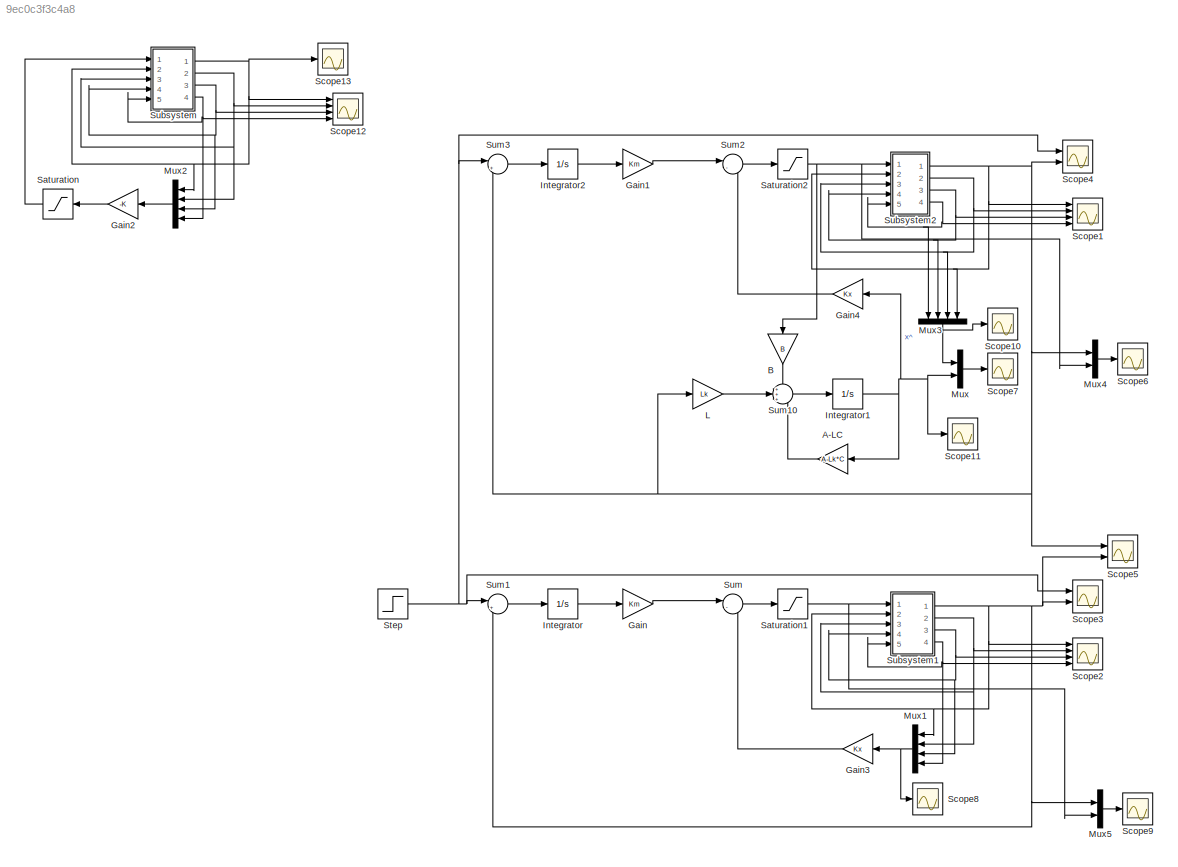
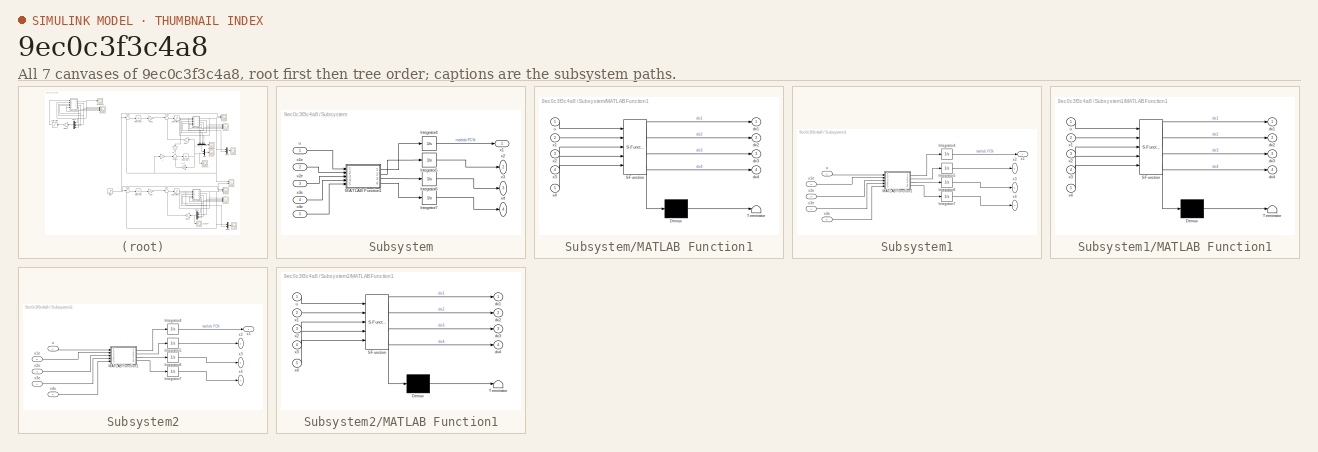
[diagram: thumbnail index - all 7 canvases of the model, root first then tree order]
MODEL slx_9ec0c3f3c4a8
KIND model
CONFIG AbsTol = auto
CONFIG FixedStep = auto
CONFIG MaxStep = 0.01
CONFIG MinStep = auto
CONFIG RelTol = 1e-3
CONFIG SampleTimeConstraint = Unconstrained
CONFIG Solver = VariableStepAuto
CONFIG SolverMode = Auto
CONFIG SolverName = VariableStepAuto
CONFIG StartTime = 0.0
CONFIG StopTime = 40
BLOCK [Gain] A-LC
  Gain = A-Lk*C
  Multiplication = Matrix(K*u)
  OutDataTypeStr = Inherit: Inherit via internal rule
  ParamDataTypeStr = Inherit: Inherit via internal rule
  SaturateOnIntegerOverflow = off
BLOCK [Gain] B
  Gain = B
  Multiplication = Matrix(K*u)
  OutDataTypeStr = Inherit: Inherit via internal rule
  ParamDataTypeStr = Inherit: Inherit via internal rule
  SaturateOnIntegerOverflow = off
BLOCK [Gain] Gain
  Gain = Km
  OutDataTypeStr = Inherit: Inherit via internal rule
  ParamDataTypeStr = Inherit: Inherit via internal rule
  SaturateOnIntegerOverflow = off
BLOCK [Gain] Gain1
  Gain = Km
  OutDataTypeStr = Inherit: Inherit via internal rule
  ParamDataTypeStr = Inherit: Inherit via internal rule
  SaturateOnIntegerOverflow = off
BLOCK [Gain] Gain2
  Gain = -K
  Multiplication = Matrix(K*u)
  OutDataTypeStr = Inherit: Inherit via internal rule
  ParamDataTypeStr = Inherit: Inherit via internal rule
  SaturateOnIntegerOverflow = off
BLOCK [Gain] Gain3
  Gain = Kx
  Multiplication = Matrix(K*u)
  OutDataTypeStr = Inherit: Inherit via internal rule
  ParamDataTypeStr = Inherit: Inherit via internal rule
  SaturateOnIntegerOverflow = off
BLOCK [Gain] Gain4
  Gain = Kx
  Multiplication = Matrix(K*u)
  OutDataTypeStr = Inherit: Inherit via internal rule
  ParamDataTypeStr = Inherit: Inherit via internal rule
  SaturateOnIntegerOverflow = off
BLOCK [Integrator] Integrator
  Ports = [1, 1]
BLOCK [Integrator] Integrator1
  InitialCondition = x0obs
  Ports = [1, 1]
  ZeroCross = off
BLOCK [Integrator] Integrator2
  Ports = [1, 1]
BLOCK [Gain] L
  Gain = Lk
  Multiplication = Matrix(K*u)
  OutDataTypeStr = Inherit: Inherit via internal rule
  ParamDataTypeStr = Inherit: Inherit via internal rule
  SaturateOnIntegerOverflow = off
BLOCK [Mux] Mux
  DisplayOption = bar
  Inputs = 2
  Ports = [2, 1]
BLOCK [Mux] Mux1
  DisplayOption = bar
  Ports = [4, 1]
BLOCK [Mux] Mux2
  DisplayOption = bar
  Ports = [4, 1]
BLOCK [Mux] Mux3
  DisplayOption = bar
  Ports = [4, 1]
BLOCK [Mux] Mux4
  DisplayOption = bar
  Inputs = 2
  Ports = [2, 1]
BLOCK [Mux] Mux5
  DisplayOption = bar
  Inputs = 2
  Ports = [2, 1]
BLOCK [Saturate] Saturation
  InputPortMap = u0
  LowerLimit = -50
  Ports = [1, 1]
  UpperLimit = 50
BLOCK [Saturate] Saturation1
  InputPortMap = u0
  LowerLimit = -50
  Ports = [1, 1]
  UpperLimit = 50
BLOCK [Saturate] Saturation2
  InputPortMap = u0
  LowerLimit = -50
  Ports = [1, 1]
  UpperLimit = 50
BLOCK [Scope] Scope1
  NumInputPorts = 4
  Ports = [4]
  ScopeSpecificationString = Simulink.scopes.TimeScopeBlockCfg('CurrentConfiguration', extmgr.ConfigurationSet(extmgr.Configuration('Core','General UI',true),extmgr.Configuration('Core','Source UI',true),extmgr.Configuration('Sources','WiredSimulink',true,'DataLoggingVariableName','ScopeData3'),extmgr.Configuration('Visuals','Time Domain',true,'SerializedDisplays',{struct('MinYLimReal','-79361.46732','MaxYLimReal','8983.56098...<+1505ch>
BLOCK [Scope] Scope10
  Ports = [1]
  ScopeSpecificationString = Simulink.scopes.TimeScopeBlockCfg('CurrentConfiguration', extmgr.ConfigurationSet(extmgr.Configuration('Core','General UI',true),extmgr.Configuration('Core','Source UI',true),extmgr.Configuration('Sources','WiredSimulink',true,'DataLoggingVariableName','x1','DataLoggingSaveFormat','Array','DataLoggingDecimation','1','DataLoggingDecimateData',true,'DataLogging',true),extmgr.Configuration('Visuals',...<+1579ch>
BLOCK [Scope] Scope11
  Ports = [1]
  ScopeSpecificationString = Simulink.scopes.TimeScopeBlockCfg('CurrentConfiguration', extmgr.ConfigurationSet(extmgr.Configuration('Core','General UI',true),extmgr.Configuration('Core','Source UI',true),extmgr.Configuration('Sources','WiredSimulink',true,'DataLoggingVariableName','x2','DataLoggingSaveFormat','Array','DataLoggingDecimation','1','DataLoggingDecimateData',true,'DataLogging',true),extmgr.Configuration('Visuals',...<+1538ch>
BLOCK [Scope] Scope12
  NumInputPorts = 4
  Ports = [4]
  ScopeSpecificationString = Simulink.scopes.TimeScopeBlockCfg('CurrentConfiguration', extmgr.ConfigurationSet(extmgr.Configuration('Core','General UI',true),extmgr.Configuration('Core','Source UI',true),extmgr.Configuration('Sources','WiredSimulink',true,'DataLoggingVariableName','ScopeData1'),extmgr.Configuration('Visuals','Time Domain',true,'SerializedDisplays',{struct('MinYLimReal','-1.09492','MaxYLimReal','1.20932','YLab...<+1473ch>
BLOCK [Scope] Scope13
  Ports = [1]
  ScopeSpecificationString = Simulink.scopes.TimeScopeBlockCfg('CurrentConfiguration', extmgr.ConfigurationSet(extmgr.Configuration('Core','General UI',true),extmgr.Configuration('Core','Source UI',true),extmgr.Configuration('Sources','WiredSimulink',true,'DataLoggingVariableName','ScopeData2'),extmgr.Configuration('Visuals','Time Domain',true,'SerializedDisplays',{struct('MinYLimReal','-0.02411','MaxYLimReal','0.21119','YLab...<+1431ch>
BLOCK [Scope] Scope2
  NumInputPorts = 4
  Ports = [4]
  ScopeSpecificationString = Simulink.scopes.TimeScopeBlockCfg('CurrentConfiguration', extmgr.ConfigurationSet(extmgr.Configuration('Core','General UI',true),extmgr.Configuration('Core','Source UI',true),extmgr.Configuration('Sources','WiredSimulink',true,'DataLoggingVariableName','ScopeData1'),extmgr.Configuration('Visuals','Time Domain',true,'SerializedDisplays',{struct('MinYLimReal','-1.56031','MaxYLimReal','1.69263','YLab...<+1477ch>
BLOCK [Scope] Scope3
  NumInputPorts = 2
  Ports = [2]
  ScopeSpecificationString = Simulink.scopes.TimeScopeBlockCfg('CurrentConfiguration', extmgr.ConfigurationSet(extmgr.Configuration('Core','General UI',true),extmgr.Configuration('Core','Source UI',true),extmgr.Configuration('Sources','WiredSimulink',true,'DataLoggingVariableName','ScopeData2'),extmgr.Configuration('Visuals','Time Domain',true,'SerializedDisplays',{struct('MinYLimReal','-0.77552','MaxYLimReal','1.31383','YLab...<+1439ch>
BLOCK [Scope] Scope4
  NumInputPorts = 2
  Ports = [2]
  ScopeSpecificationString = Simulink.scopes.TimeScopeBlockCfg('CurrentConfiguration', extmgr.ConfigurationSet(extmgr.Configuration('Core','General UI',true),extmgr.Configuration('Core','Source UI',true),extmgr.Configuration('Sources','WiredSimulink',true,'DataLoggingVariableName','ScopeData4'),extmgr.Configuration('Visuals','Time Domain',true,'SerializedDisplays',{struct('MinYLimReal','-0.98257','MaxYLimReal','1.49995','YLab...<+1439ch>
BLOCK [Scope] Scope5
  NumInputPorts = 2
  Ports = [2]
  ScopeSpecificationString = Simulink.scopes.TimeScopeBlockCfg('CurrentConfiguration', extmgr.ConfigurationSet(extmgr.Configuration('Core','General UI',true),extmgr.Configuration('Core','Source UI',true),extmgr.Configuration('Sources','WiredSimulink',true,'DataLoggingVariableName','ScopeData1'),extmgr.Configuration('Visuals','Time Domain',true,'SerializedDisplays',{struct('MinYLimReal','-1.00000','MaxYLimReal','1.00000','YLab...<+2114ch>
BLOCK [Scope] Scope6
  Ports = [1]
  ScopeSpecificationString = Simulink.scopes.TimeScopeBlockCfg('CurrentConfiguration', extmgr.ConfigurationSet(extmgr.Configuration('Core','General UI',true),extmgr.Configuration('Core','Source UI',true),extmgr.Configuration('Sources','WiredSimulink',true,'DataLoggingVariableName','y1','DataLoggingSaveFormat','Array','DataLoggingDecimation','1','DataLoggingDecimateData',true,'DataLogging',true),extmgr.Configuration('Visuals',...<+1552ch>
BLOCK [Scope] Scope7
  Ports = [1]
  ScopeSpecificationString = Simulink.scopes.TimeScopeBlockCfg('CurrentConfiguration', extmgr.ConfigurationSet(extmgr.Configuration('Core','General UI',true),extmgr.Configuration('Core','Source UI',true),extmgr.Configuration('Sources','WiredSimulink',true,'DataLoggingVariableName','ScopeData8'),extmgr.Configuration('Visuals','Time Domain',true,'SerializedDisplays',{struct('MinYLimReal','-1.60455','MaxYLimReal','2.44481','YLab...<+1549ch>
BLOCK [Scope] Scope8
  Ports = [1]
  ScopeSpecificationString = Simulink.scopes.TimeScopeBlockCfg('CurrentConfiguration', extmgr.ConfigurationSet(extmgr.Configuration('Core','General UI',true),extmgr.Configuration('Core','Source UI',true),extmgr.Configuration('Sources','WiredSimulink',true,'DataLoggingVariableName','x','DataLoggingSaveFormat','Array','DataLoggingDecimation','1','DataLoggingDecimateData',true,'DataLogging',true),extmgr.Configuration('Visuals','...<+1572ch>
BLOCK [Scope] Scope9
  Ports = [1]
  ScopeSpecificationString = Simulink.scopes.TimeScopeBlockCfg('CurrentConfiguration', extmgr.ConfigurationSet(extmgr.Configuration('Core','General UI',true),extmgr.Configuration('Core','Source UI',true),extmgr.Configuration('Sources','WiredSimulink',true,'DataLoggingVariableName','y','DataLoggingSaveFormat','Array','DataLoggingDecimation','1','DataLoggingDecimateData',true,'DataLogging',true),extmgr.Configuration('Visuals','...<+1551ch>
BLOCK [Step] Step
  After = pi/180*0
  SampleTime = 0
  Time = 20
BLOCK [SubSystem] Subsystem
  Ports = [5, 4]
  RequestExecContextInheritance = off
  Variant = off
BLOCK [Integrator] Subsystem/Integrator4
  Ports = [1, 1]
  ZeroCross = off
BLOCK [Integrator] Subsystem/Integrator5
  Ports = [1, 1]
  ZeroCross = off
BLOCK [Integrator] Subsystem/Integrator6
  InitialCondition = 0.1
  Ports = [1, 1]
  ZeroCross = off
BLOCK [Integrator] Subsystem/Integrator7
  Ports = [1, 1]
  ZeroCross = off
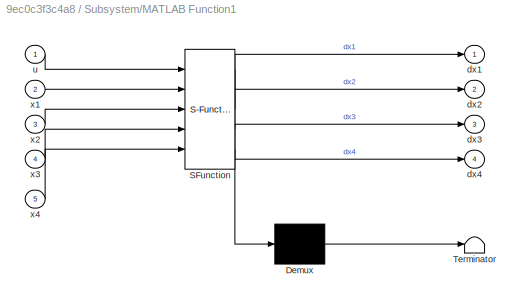
BLOCK [SubSystem] Subsystem/MATLAB Function1
  ErrorFcn = Stateflow.Translate.translate
  PermitHierarchicalResolution = ExplicitOnly
  Ports = [5, 4]
  RequestExecContextInheritance = off
  SFBlockType = MATLAB Function
  TreatAsAtomicUnit = on
  Variant = off
BLOCK [Demux] Subsystem/MATLAB Function1/ Demux 
  Outputs = 1
  Ports = [1, 1]
BLOCK [S-Function] Subsystem/MATLAB Function1/ SFunction 
  EnableBusSupport = on
  FunctionName = sf_sfun
  PortCounts = [5 5]
  Ports = [5, 5]
  SFunctionDeploymentMode = off
  Tag = Stateflow S-Function modelo_q3 1
BLOCK [Terminator] Subsystem/MATLAB Function1/ Terminator 
BLOCK [Outport] Subsystem/MATLAB Function1/dx1
  IconDisplay = Port number
BLOCK [Outport] Subsystem/MATLAB Function1/dx2
  IconDisplay = Port number
  Port = 2
BLOCK [Outport] Subsystem/MATLAB Function1/dx3
  IconDisplay = Port number
  Port = 3
BLOCK [Outport] Subsystem/MATLAB Function1/dx4
  IconDisplay = Port number
  Port = 4
BLOCK [Inport] Subsystem/MATLAB Function1/u
  IconDisplay = Port number
BLOCK [Inport] Subsystem/MATLAB Function1/x1
  IconDisplay = Port number
  Port = 2
BLOCK [Inport] Subsystem/MATLAB Function1/x2
  IconDisplay = Port number
  Port = 3
BLOCK [Inport] Subsystem/MATLAB Function1/x3
  IconDisplay = Port number
  Port = 4
BLOCK [Inport] Subsystem/MATLAB Function1/x4
  IconDisplay = Port number
  Port = 5
BLOCK [Inport] Subsystem/u
  IconDisplay = Port number
BLOCK [Outport] Subsystem/x1
  IconDisplay = Port number
BLOCK [Inport] Subsystem/x1e
  IconDisplay = Port number
  Port = 2
BLOCK [Outport] Subsystem/x2
  IconDisplay = Port number
  Port = 2
BLOCK [Inport] Subsystem/x2e
  IconDisplay = Port number
  Port = 3
BLOCK [Outport] Subsystem/x3
  IconDisplay = Port number
  Port = 3
BLOCK [Inport] Subsystem/x3e
  IconDisplay = Port number
  Port = 4
BLOCK [Outport] Subsystem/x4
  IconDisplay = Port number
  Port = 4
BLOCK [Inport] Subsystem/x4e
  IconDisplay = Port number
  Port = 5
BLOCK [SubSystem] Subsystem1
  Ports = [5, 4]
  RequestExecContextInheritance = off
  Variant = off
BLOCK [Integrator] Subsystem1/Integrator4
  InitialCondition = x0(1)
  Ports = [1, 1]
  ZeroCross = off
BLOCK [Integrator] Subsystem1/Integrator5
  InitialCondition = x0(2)
  Ports = [1, 1]
  ZeroCross = off
BLOCK [Integrator] Subsystem1/Integrator6
  InitialCondition = x0(3)
  Ports = [1, 1]
  ZeroCross = off
BLOCK [Integrator] Subsystem1/Integrator7
  InitialCondition = x0(4)
  Ports = [1, 1]
  ZeroCross = off
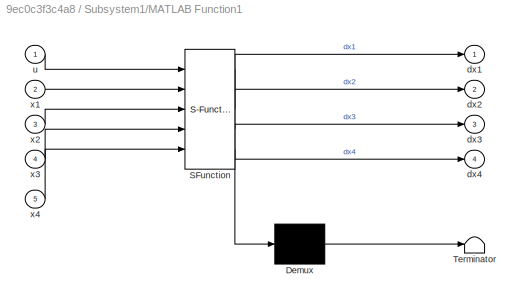
BLOCK [SubSystem] Subsystem1/MATLAB Function1
  ErrorFcn = Stateflow.Translate.translate
  PermitHierarchicalResolution = ExplicitOnly
  Ports = [5, 4]
  RequestExecContextInheritance = off
  SFBlockType = MATLAB Function
  TreatAsAtomicUnit = on
  Variant = off
BLOCK [Demux] Subsystem1/MATLAB Function1/ Demux 
  Outputs = 1
  Ports = [1, 1]
BLOCK [S-Function] Subsystem1/MATLAB Function1/ SFunction 
  EnableBusSupport = on
  FunctionName = sf_sfun
  PortCounts = [5 5]
  Ports = [5, 5]
  SFunctionDeploymentMode = off
  Tag = Stateflow S-Function modelo_q3 2
BLOCK [Terminator] Subsystem1/MATLAB Function1/ Terminator 
BLOCK [Outport] Subsystem1/MATLAB Function1/dx1
  IconDisplay = Port number
BLOCK [Outport] Subsystem1/MATLAB Function1/dx2
  IconDisplay = Port number
  Port = 2
BLOCK [Outport] Subsystem1/MATLAB Function1/dx3
  IconDisplay = Port number
  Port = 3
BLOCK [Outport] Subsystem1/MATLAB Function1/dx4
  IconDisplay = Port number
  Port = 4
BLOCK [Inport] Subsystem1/MATLAB Function1/u
  IconDisplay = Port number
BLOCK [Inport] Subsystem1/MATLAB Function1/x1
  IconDisplay = Port number
  Port = 2
BLOCK [Inport] Subsystem1/MATLAB Function1/x2
  IconDisplay = Port number
  Port = 3
BLOCK [Inport] Subsystem1/MATLAB Function1/x3
  IconDisplay = Port number
  Port = 4
BLOCK [Inport] Subsystem1/MATLAB Function1/x4
  IconDisplay = Port number
  Port = 5
BLOCK [Inport] Subsystem1/u
  IconDisplay = Port number
BLOCK [Outport] Subsystem1/x1
  IconDisplay = Port number
BLOCK [Inport] Subsystem1/x1e
  IconDisplay = Port number
  Port = 2
BLOCK [Outport] Subsystem1/x2
  IconDisplay = Port number
  Port = 2
BLOCK [Inport] Subsystem1/x2e
  IconDisplay = Port number
  Port = 3
BLOCK [Outport] Subsystem1/x3
  IconDisplay = Port number
  Port = 3
BLOCK [Inport] Subsystem1/x3e
  IconDisplay = Port number
  Port = 4
BLOCK [Outport] Subsystem1/x4
  IconDisplay = Port number
  Port = 4
BLOCK [Inport] Subsystem1/x4e
  IconDisplay = Port number
  Port = 5
BLOCK [SubSystem] Subsystem2
  Ports = [5, 4]
  RequestExecContextInheritance = off
  Variant = off
BLOCK [Integrator] Subsystem2/Integrator4
  InitialCondition = x0(1)
  Ports = [1, 1]
  ZeroCross = off
BLOCK [Integrator] Subsystem2/Integrator5
  InitialCondition = x0(2)
  Ports = [1, 1]
  ZeroCross = off
BLOCK [Integrator] Subsystem2/Integrator6
  InitialCondition = x0(3)
  Ports = [1, 1]
  ZeroCross = off
BLOCK [Integrator] Subsystem2/Integrator7
  InitialCondition = x0(4)
  Ports = [1, 1]
  ZeroCross = off
BLOCK [SubSystem] Subsystem2/MATLAB Function1
  ErrorFcn = Stateflow.Translate.translate
  PermitHierarchicalResolution = ExplicitOnly
  Ports = [5, 4]
  RequestExecContextInheritance = off
  SFBlockType = MATLAB Function
  TreatAsAtomicUnit = on
  Variant = off
BLOCK [Demux] Subsystem2/MATLAB Function1/ Demux 
  Outputs = 1
  Ports = [1, 1]
BLOCK [S-Function] Subsystem2/MATLAB Function1/ SFunction 
  EnableBusSupport = on
  FunctionName = sf_sfun
  PortCounts = [5 5]
  Ports = [5, 5]
  SFunctionDeploymentMode = off
  Tag = Stateflow S-Function modelo_q3 3
BLOCK [Terminator] Subsystem2/MATLAB Function1/ Terminator 
BLOCK [Outport] Subsystem2/MATLAB Function1/dx1
  IconDisplay = Port number
BLOCK [Outport] Subsystem2/MATLAB Function1/dx2
  IconDisplay = Port number
  Port = 2
BLOCK [Outport] Subsystem2/MATLAB Function1/dx3
  IconDisplay = Port number
  Port = 3
BLOCK [Outport] Subsystem2/MATLAB Function1/dx4
  IconDisplay = Port number
  Port = 4
BLOCK [Inport] Subsystem2/MATLAB Function1/u
  IconDisplay = Port number
BLOCK [Inport] Subsystem2/MATLAB Function1/x1
  IconDisplay = Port number
  Port = 2
BLOCK [Inport] Subsystem2/MATLAB Function1/x2
  IconDisplay = Port number
  Port = 3
BLOCK [Inport] Subsystem2/MATLAB Function1/x3
  IconDisplay = Port number
  Port = 4
BLOCK [Inport] Subsystem2/MATLAB Function1/x4
  IconDisplay = Port number
  Port = 5
BLOCK [Inport] Subsystem2/u
  IconDisplay = Port number
BLOCK [Outport] Subsystem2/x1
  IconDisplay = Port number
BLOCK [Inport] Subsystem2/x1e
  IconDisplay = Port number
  Port = 2
BLOCK [Outport] Subsystem2/x2
  IconDisplay = Port number
  Port = 2
BLOCK [Inport] Subsystem2/x2e
  IconDisplay = Port number
  Port = 3
BLOCK [Outport] Subsystem2/x3
  IconDisplay = Port number
  Port = 3
BLOCK [Inport] Subsystem2/x3e
  IconDisplay = Port number
  Port = 4
BLOCK [Outport] Subsystem2/x4
  IconDisplay = Port number
  Port = 4
BLOCK [Inport] Subsystem2/x4e
  IconDisplay = Port number
  Port = 5
BLOCK [Sum] Sum
  IconShape = round
  InputSameDT = off
  Inputs = |--
  OutDataTypeStr = Inherit: Inherit via internal rule
  Ports = [2, 1]
  SaturateOnIntegerOverflow = off
BLOCK [Sum] Sum1
  IconShape = round
  InputSameDT = off
  Inputs = |+-
  OutDataTypeStr = Inherit: Inherit via internal rule
  Ports = [2, 1]
  SaturateOnIntegerOverflow = off
BLOCK [Sum] Sum10
  IconShape = round
  InputSameDT = off
  Inputs = +++
  OutDataTypeStr = Inherit: Inherit via internal rule
  Ports = [3, 1]
  SaturateOnIntegerOverflow = off
BLOCK [Sum] Sum2
  IconShape = round
  InputSameDT = off
  Inputs = |--
  OutDataTypeStr = Inherit: Inherit via internal rule
  Ports = [2, 1]
  SaturateOnIntegerOverflow = off
BLOCK [Sum] Sum3
  IconShape = round
  InputSameDT = off
  Inputs = |+-
  OutDataTypeStr = Inherit: Inherit via internal rule
  Ports = [2, 1]
  SaturateOnIntegerOverflow = off
LINE A-LC:1 -> Sum10:3
LINE B:1 -> Sum10:1
LINE Gain1:1 -> Sum2:1
LINE Gain2:1 -> Saturation:1
LINE Gain3:1 -> Sum:2
LINE Gain4:1 -> Sum2:2
LINE Gain:1 -> Sum:1
NET Integrator1:1 -> A-LC:1, Gain4:1, Mux:2, Scope11:1
LINE Integrator2:1 -> Gain1:1
LINE Integrator:1 -> Gain:1
LINE L:1 -> Sum10:2
NET Mux1:1 -> Gain3:1, Scope8:1
LINE Mux2:1 -> Gain2:1
NET Mux3:1 -> Mux:1, Scope10:1
LINE Mux4:1 -> Scope6:1
LINE Mux5:1 -> Scope9:1
LINE Mux:1 -> Scope7:1
NET Saturation1:1 -> Mux5:2, Subsystem1:1
NET Saturation2:1 -> B:1, Mux4:2, Subsystem2:1
LINE Saturation:1 -> Subsystem:1
NET Step:1 -> Scope3:1, Scope4:1, Sum1:1, Sum3:1
LINE Subsystem/Integrator4:1 -> Subsystem/x1:1
LINE Subsystem/Integrator5:1 -> Subsystem/x2:1
LINE Subsystem/Integrator6:1 -> Subsystem/x3:1
LINE Subsystem/Integrator7:1 -> Subsystem/x4:1
LINE Subsystem/MATLAB Function1:1 -> Subsystem/Integrator4:1
LINE Subsystem/MATLAB Function1:2 -> Subsystem/Integrator5:1
LINE Subsystem/MATLAB Function1:3 -> Subsystem/Integrator6:1
LINE Subsystem/MATLAB Function1:4 -> Subsystem/Integrator7:1
LINE Subsystem/u:1 -> Subsystem/MATLAB Function1:1
LINE Subsystem/x1e:1 -> Subsystem/MATLAB Function1:2
LINE Subsystem/x2e:1 -> Subsystem/MATLAB Function1:3
LINE Subsystem/x3e:1 -> Subsystem/MATLAB Function1:4
LINE Subsystem/x4e:1 -> Subsystem/MATLAB Function1:5
LINE Subsystem1/Integrator4:1 -> Subsystem1/x1:1
LINE Subsystem1/Integrator5:1 -> Subsystem1/x2:1
LINE Subsystem1/Integrator6:1 -> Subsystem1/x3:1
LINE Subsystem1/Integrator7:1 -> Subsystem1/x4:1
LINE Subsystem1/MATLAB Function1:1 -> Subsystem1/Integrator4:1
LINE Subsystem1/MATLAB Function1:2 -> Subsystem1/Integrator5:1
LINE Subsystem1/MATLAB Function1:3 -> Subsystem1/Integrator6:1
LINE Subsystem1/MATLAB Function1:4 -> Subsystem1/Integrator7:1
LINE Subsystem1/u:1 -> Subsystem1/MATLAB Function1:1
LINE Subsystem1/x1e:1 -> Subsystem1/MATLAB Function1:2
LINE Subsystem1/x2e:1 -> Subsystem1/MATLAB Function1:3
LINE Subsystem1/x3e:1 -> Subsystem1/MATLAB Function1:4
LINE Subsystem1/x4e:1 -> Subsystem1/MATLAB Function1:5
NET Subsystem1:1 -> Mux1:1, Mux5:1, Scope2:1, Scope3:2, Scope5:2, Subsystem1:2, Sum1:2
NET Subsystem1:2 -> Mux1:2, Scope2:2, Subsystem1:3
NET Subsystem1:3 -> Mux1:3, Scope2:3, Subsystem1:4
NET Subsystem1:4 -> Mux1:4, Scope2:4, Subsystem1:5
LINE Subsystem2/Integrator4:1 -> Subsystem2/x1:1
LINE Subsystem2/Integrator5:1 -> Subsystem2/x2:1
LINE Subsystem2/Integrator6:1 -> Subsystem2/x3:1
LINE Subsystem2/Integrator7:1 -> Subsystem2/x4:1
LINE Subsystem2/MATLAB Function1:1 -> Subsystem2/Integrator4:1
LINE Subsystem2/MATLAB Function1:2 -> Subsystem2/Integrator5:1
LINE Subsystem2/MATLAB Function1:3 -> Subsystem2/Integrator6:1
LINE Subsystem2/MATLAB Function1:4 -> Subsystem2/Integrator7:1
LINE Subsystem2/u:1 -> Subsystem2/MATLAB Function1:1
LINE Subsystem2/x1e:1 -> Subsystem2/MATLAB Function1:2
LINE Subsystem2/x2e:1 -> Subsystem2/MATLAB Function1:3
LINE Subsystem2/x3e:1 -> Subsystem2/MATLAB Function1:4
LINE Subsystem2/x4e:1 -> Subsystem2/MATLAB Function1:5
NET Subsystem2:1 -> L:1, Mux3:4, Mux4:1, Scope1:1, Scope4:2, Scope5:1, Subsystem2:2, Sum3:2
NET Subsystem2:2 -> Mux3:3, Scope1:2, Subsystem2:3
NET Subsystem2:3 -> Mux3:2, Scope1:3, Subsystem2:4
NET Subsystem2:4 -> Mux3:1, Scope1:4, Subsystem2:5
NET Subsystem:1 -> Mux2:1, Scope12:1, Scope13:1, Subsystem:2
NET Subsystem:2 -> Mux2:2, Scope12:2, Subsystem:3
NET Subsystem:3 -> Mux2:3, Scope12:3, Subsystem:4
NET Subsystem:4 -> Mux2:4, Scope12:4, Subsystem:5
LINE Sum10:1 -> Integrator1:1
LINE Sum1:1 -> Integrator:1
LINE Sum2:1 -> Saturation2:1
LINE Sum3:1 -> Integrator2:1
LINE Sum:1 -> Saturation1:1
note: NET lines group one-source signal fan-out (src -> all destinations, sorted); 1:1 wires keep LINE
CHART Subsystem/MATLAB Function1 states=1 transitions=1
  STATE_LABEL 'eML_blk_kernel()'
  STATE_LABEL 'SCRIPT:\nfunction [dx1,dx2,dx3,dx4] = fcn(u, x1, x2, x3, x4)\n%#codegen\nM = 1;\nL = 1;\nm = 0.5;\ng = 9.81;\n\n\ndx1 = x2;\ndx2 = (u-m*g*sin(x3)*cos(x3)+m*L*x4^2*sin(x3))/(M+m-m*cos(x3)^2);\ndx3 = x4;\nf4_num = m*g*sin(x3)-((u+m*L*x4^2*sin(x3))*m*cos(x3))/(M+m);\nf4_den = m*L-(m^2*L*cos(x3)^2)/(M+m);\ndx4 = f4_num/f4_den;\nend'  <repeated x3 — deduplicated; at blocks: MATLAB Function1>
CHART Subsystem1/MATLAB Function1 states=1 transitions=1
  STATE_LABEL 'eML_blk_kernel()'
CHART Subsystem2/MATLAB Function1 states=1 transitions=1
  STATE_LABEL 'eML_blk_kernel()'
